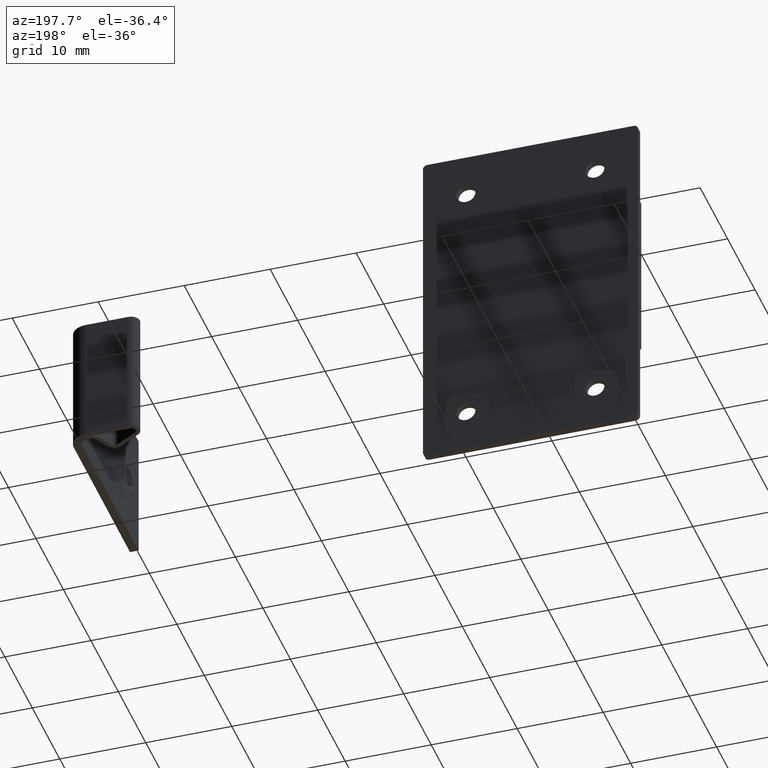
[diagram: clean part render]
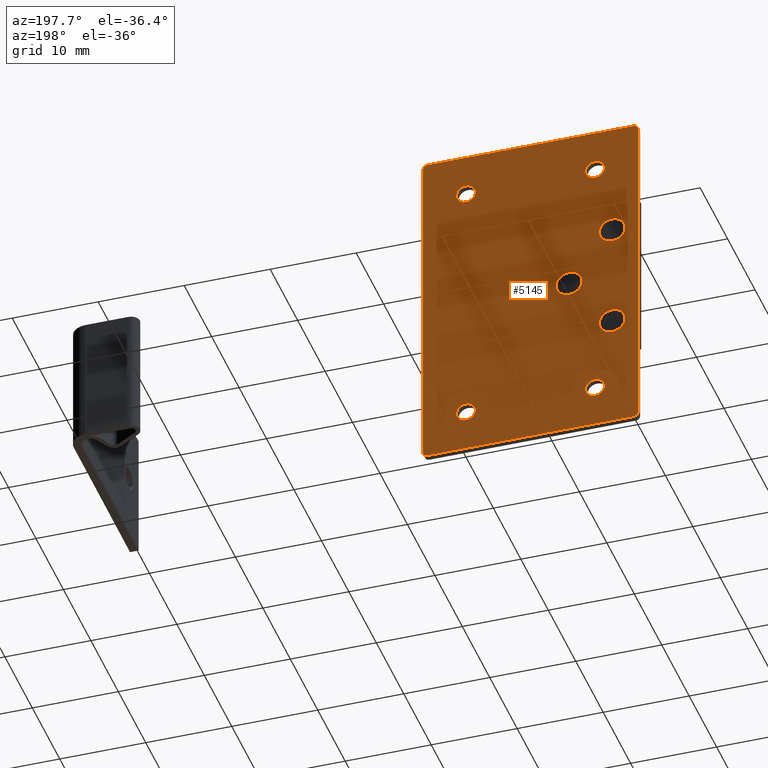
[diagram: same view with one face highlighted and labeled with its STEP entity id]
A machine part, auxiliary view. The second image highlights one B-rep face of the part: STEP entity #5145.
In plain terms, the highlighted face is a freeform B-spline surface patch.
Its self-contained STEP definition (entity closure, byte-faithful):
#3443=CARTESIAN_POINT('',(3.903390932939413,1.734723E-017,15.086290005883260));
#3444=VERTEX_POINT('',#3443);
#3450=CARTESIAN_POINT('',(5.0,0.0,16.099985000000000));
#3451=VERTEX_POINT('',#3450);
#3452=CARTESIAN_POINT('',(5.0,0.0,16.099985000000000));
#3453=CARTESIAN_POINT('',(3.983170460259789,0.0,16.099984999999997));
#3454=CARTESIAN_POINT('',(3.903390932939413,1.734723E-017,15.086290005883255));
#3462=(BOUNDED_CURVE()B_SPLINE_CURVE(2,(#3452,#3453,#3454),.UNSPECIFIED.,.F.,.U.)B_SPLINE_CURVE_WITH_KNOTS((3,3),(0.0,0.236331300450613),.UNSPECIFIED.)CURVE()GEOMETRIC_REPRESENTATION_ITEM()RATIONAL_B_SPLINE_CURVE((1.0,0.723120658818604,0.969723355791673))REPRESENTATION_ITEM(''));
#3463=EDGE_CURVE('',#3451,#3444,#3462,.T.);
#3465=CARTESIAN_POINT('',(6.096609067060587,1.734723E-017,14.913679994116750));
#3466=VERTEX_POINT('',#3465);
#3467=CARTESIAN_POINT('',(6.096609067060587,1.734723E-017,14.913679994116750));
#3468=CARTESIAN_POINT('',(6.100000000000001,0.0,14.956765881706232));
#3469=CARTESIAN_POINT('',(6.100000000000001,0.0,14.999985000000001));
#3470=CARTESIAN_POINT('',(6.100000000000001,0.0,16.099985000000004));
#3471=CARTESIAN_POINT('',(5.0,0.0,16.099985000000000));
#3479=(BOUNDED_CURVE()B_SPLINE_CURVE(2,(#3467,#3468,#3469,#3470,#3471),.UNSPECIFIED.,.F.,.U.)B_SPLINE_CURVE_WITH_KNOTS((3,2,3),(0.736331300450612,0.750000000000000,1.0),.UNSPECIFIED.)CURVE()GEOMETRIC_REPRESENTATION_ITEM()RATIONAL_B_SPLINE_CURVE((0.969723355791673,0.983986122367943,1.0,0.707106781186548,1.0))REPRESENTATION_ITEM(''));
#3480=EDGE_CURVE('',#3466,#3451,#3479,.T.);
#3556=CARTESIAN_POINT('',(5.0,0.0,13.899984999999999));
#3557=VERTEX_POINT('',#3556);
#3558=CARTESIAN_POINT('',(5.0,0.0,13.899984999999999));
#3559=CARTESIAN_POINT('',(6.016829539740207,0.0,13.899984999999996));
#3560=CARTESIAN_POINT('',(6.096609067060587,1.734723E-017,14.913679994116748));
#3568=(BOUNDED_CURVE()B_SPLINE_CURVE(2,(#3558,#3559,#3560),.UNSPECIFIED.,.F.,.U.)B_SPLINE_CURVE_WITH_KNOTS((3,3),(0.500000000000000,0.736331300450612),.UNSPECIFIED.)CURVE()GEOMETRIC_REPRESENTATION_ITEM()RATIONAL_B_SPLINE_CURVE((1.0,0.723120658818605,0.969723355791672))REPRESENTATION_ITEM(''));
#3569=EDGE_CURVE('',#3557,#3466,#3568,.T.);
#3571=CARTESIAN_POINT('',(3.903390932939413,1.734723E-017,15.086290005883249));
#3572=CARTESIAN_POINT('',(3.900000000000000,0.0,15.043204118293771));
#3573=CARTESIAN_POINT('',(3.900000000000000,0.0,14.999985000000001));
#3574=CARTESIAN_POINT('',(3.899999999999999,0.0,13.899985000000001));
#3575=CARTESIAN_POINT('',(5.0,0.0,13.899984999999999));
#3583=(BOUNDED_CURVE()B_SPLINE_CURVE(2,(#3571,#3572,#3573,#3574,#3575),.UNSPECIFIED.,.F.,.U.)B_SPLINE_CURVE_WITH_KNOTS((3,2,3),(0.236331300450613,0.250000000000000,0.500000000000000),.UNSPECIFIED.)CURVE()GEOMETRIC_REPRESENTATION_ITEM()RATIONAL_B_SPLINE_CURVE((0.969723355791673,0.983986122367944,1.0,0.707106781186548,1.0))REPRESENTATION_ITEM(''));
#3584=EDGE_CURVE('',#3444,#3557,#3583,.T.);
#3625=CARTESIAN_POINT('',(18.903390932939409,1.734723E-017,15.086290005883260));
#3626=VERTEX_POINT('',#3625);
#3632=CARTESIAN_POINT('',(20.0,0.0,16.099985000000000));
#3633=VERTEX_POINT('',#3632);
#3634=CARTESIAN_POINT('',(20.0,0.0,16.099985000000000));
#3635=CARTESIAN_POINT('',(18.983170460259785,0.0,16.099985000000011));
#3636=CARTESIAN_POINT('',(18.903390932939413,1.734723E-017,15.086290005883258));
#3644=(BOUNDED_CURVE()B_SPLINE_CURVE(2,(#3634,#3635,#3636),.UNSPECIFIED.,.F.,.U.)B_SPLINE_CURVE_WITH_KNOTS((3,3),(0.0,0.236331300450612),.UNSPECIFIED.)CURVE()GEOMETRIC_REPRESENTATION_ITEM()RATIONAL_B_SPLINE_CURVE((1.0,0.723120658818604,0.969723355791673))REPRESENTATION_ITEM(''));
#3645=EDGE_CURVE('',#3633,#3626,#3644,.T.);
#3647=CARTESIAN_POINT('',(21.096609067060591,1.734723E-017,14.913679994116750));
#3648=VERTEX_POINT('',#3647);
#3649=CARTESIAN_POINT('',(21.096609067060584,1.734723E-017,14.913679994116741));
#3650=CARTESIAN_POINT('',(21.100000000000005,0.0,14.956765881706234));
#3651=CARTESIAN_POINT('',(21.100000000000001,0.0,14.999985000000001));
#3652=CARTESIAN_POINT('',(21.100000000000009,0.0,16.099985000000004));
#3653=CARTESIAN_POINT('',(20.0,0.0,16.099985000000000));
#3661=(BOUNDED_CURVE()B_SPLINE_CURVE(2,(#3649,#3650,#3651,#3652,#3653),.UNSPECIFIED.,.F.,.U.)B_SPLINE_CURVE_WITH_KNOTS((3,2,3),(0.736331300450612,0.750000000000000,1.0),.UNSPECIFIED.)CURVE()GEOMETRIC_REPRESENTATION_ITEM()RATIONAL_B_SPLINE_CURVE((0.969723355791673,0.983986122367943,1.0,0.707106781186548,1.0))REPRESENTATION_ITEM(''));
#3662=EDGE_CURVE('',#3648,#3633,#3661,.T.);
#3738=CARTESIAN_POINT('',(20.0,0.0,13.899984999999999));
#3739=VERTEX_POINT('',#3738);
#3740=CARTESIAN_POINT('',(20.0,0.0,13.899984999999999));
#3741=CARTESIAN_POINT('',(21.016829539740218,0.0,13.899984999999996));
#3742=CARTESIAN_POINT('',(21.096609067060587,1.734723E-017,14.913679994116748));
#3750=(BOUNDED_CURVE()B_SPLINE_CURVE(2,(#3740,#3741,#3742),.UNSPECIFIED.,.F.,.U.)B_SPLINE_CURVE_WITH_KNOTS((3,3),(0.500000000000000,0.736331300450612),.UNSPECIFIED.)CURVE()GEOMETRIC_REPRESENTATION_ITEM()RATIONAL_B_SPLINE_CURVE((1.0,0.723120658818605,0.969723355791672))REPRESENTATION_ITEM(''));
#3751=EDGE_CURVE('',#3739,#3648,#3750,.T.);
#3753=CARTESIAN_POINT('',(18.903390932939413,1.734723E-017,15.086290005883258));
#3754=CARTESIAN_POINT('',(18.899999999999999,0.0,15.043204118293765));
#3755=CARTESIAN_POINT('',(18.899999999999999,0.0,14.999985000000001));
#3756=CARTESIAN_POINT('',(18.900000000000002,0.0,13.899985000000001));
#3757=CARTESIAN_POINT('',(20.0,0.0,13.899984999999999));
#3765=(BOUNDED_CURVE()B_SPLINE_CURVE(2,(#3753,#3754,#3755,#3756,#3757),.UNSPECIFIED.,.F.,.U.)B_SPLINE_CURVE_WITH_KNOTS((3,2,3),(0.236331300450612,0.250000000000000,0.500000000000000),.UNSPECIFIED.)CURVE()GEOMETRIC_REPRESENTATION_ITEM()RATIONAL_B_SPLINE_CURVE((0.969723355791673,0.983986122367943,1.0,0.707106781186548,1.0))REPRESENTATION_ITEM(''));
#3766=EDGE_CURVE('',#3626,#3739,#3765,.T.);
#3807=CARTESIAN_POINT('',(18.903390932939409,1.734723E-017,-14.913694994116740));
#3808=VERTEX_POINT('',#3807);
#3814=CARTESIAN_POINT('',(20.0,0.0,-13.900000000000000));
#3815=VERTEX_POINT('',#3814);
#3816=CARTESIAN_POINT('',(20.0,0.0,-13.900000000000000));
#3817=CARTESIAN_POINT('',(18.983170460259785,0.0,-13.900000000000004));
#3818=CARTESIAN_POINT('',(18.903390932939413,1.734723E-017,-14.913694994116740));
#3826=(BOUNDED_CURVE()B_SPLINE_CURVE(2,(#3816,#3817,#3818),.UNSPECIFIED.,.F.,.U.)B_SPLINE_CURVE_WITH_KNOTS((3,3),(0.0,0.236331300450612),.UNSPECIFIED.)CURVE()GEOMETRIC_REPRESENTATION_ITEM()RATIONAL_B_SPLINE_CURVE((1.0,0.723120658818604,0.969723355791673))REPRESENTATION_ITEM(''));
#3827=EDGE_CURVE('',#3815,#3808,#3826,.T.);
#3829=CARTESIAN_POINT('',(21.096609067060591,1.734723E-017,-15.086305005883251));
#3830=VERTEX_POINT('',#3829);
#3831=CARTESIAN_POINT('',(21.096609067060587,1.734723E-017,-15.086305005883258));
#3832=CARTESIAN_POINT('',(21.100000000000001,0.0,-15.043219118293768));
#3833=CARTESIAN_POINT('',(21.100000000000001,0.0,-15.0));
#3834=CARTESIAN_POINT('',(21.100000000000009,0.0,-13.899999999999999));
#3835=CARTESIAN_POINT('',(20.0,0.0,-13.900000000000000));
#3843=(BOUNDED_CURVE()B_SPLINE_CURVE(2,(#3831,#3832,#3833,#3834,#3835),.UNSPECIFIED.,.F.,.U.)B_SPLINE_CURVE_WITH_KNOTS((3,2,3),(0.736331300450612,0.750000000000000,1.0),.UNSPECIFIED.)CURVE()GEOMETRIC_REPRESENTATION_ITEM()RATIONAL_B_SPLINE_CURVE((0.969723355791673,0.983986122367944,1.0,0.707106781186548,1.0))REPRESENTATION_ITEM(''));
#3844=EDGE_CURVE('',#3830,#3815,#3843,.T.);
#3920=CARTESIAN_POINT('',(20.0,0.0,-16.100000000000001));
#3921=VERTEX_POINT('',#3920);
#3922=CARTESIAN_POINT('',(20.0,0.0,-16.100000000000001));
#3923=CARTESIAN_POINT('',(21.016829539740218,0.0,-16.100000000000005));
#3924=CARTESIAN_POINT('',(21.096609067060587,1.734723E-017,-15.086305005883251));
#3932=(BOUNDED_CURVE()B_SPLINE_CURVE(2,(#3922,#3923,#3924),.UNSPECIFIED.,.F.,.U.)B_SPLINE_CURVE_WITH_KNOTS((3,3),(0.500000000000000,0.736331300450612),.UNSPECIFIED.)CURVE()GEOMETRIC_REPRESENTATION_ITEM()RATIONAL_B_SPLINE_CURVE((1.0,0.723120658818605,0.969723355791672))REPRESENTATION_ITEM(''));
#3933=EDGE_CURVE('',#3921,#3830,#3932,.T.);
#3935=CARTESIAN_POINT('',(18.903390932939413,1.734723E-017,-14.913694994116740));
#3936=CARTESIAN_POINT('',(18.899999999999999,0.0,-14.956780881706237));
#3937=CARTESIAN_POINT('',(18.899999999999999,0.0,-15.0));
#3938=CARTESIAN_POINT('',(18.900000000000002,0.0,-16.100000000000005));
#3939=CARTESIAN_POINT('',(20.0,0.0,-16.100000000000001));
#3947=(BOUNDED_CURVE()B_SPLINE_CURVE(2,(#3935,#3936,#3937,#3938,#3939),.UNSPECIFIED.,.F.,.U.)B_SPLINE_CURVE_WITH_KNOTS((3,2,3),(0.236331300450612,0.250000000000000,0.500000000000000),.UNSPECIFIED.)CURVE()GEOMETRIC_REPRESENTATION_ITEM()RATIONAL_B_SPLINE_CURVE((0.969723355791673,0.983986122367943,1.0,0.707106781186548,1.0))REPRESENTATION_ITEM(''));
#3948=EDGE_CURVE('',#3808,#3921,#3947,.T.);
#3989=CARTESIAN_POINT('',(3.903390932939413,1.734723E-017,-14.913694994116749));
#3990=VERTEX_POINT('',#3989);
#3996=CARTESIAN_POINT('',(5.0,0.0,-13.900000000000000));
#3997=VERTEX_POINT('',#3996);
#3998=CARTESIAN_POINT('',(5.0,0.0,-13.900000000000000));
#3999=CARTESIAN_POINT('',(3.983170460259789,0.0,-13.900000000000004));
#4000=CARTESIAN_POINT('',(3.903390932939413,1.734723E-017,-14.913694994116742));
#4008=(BOUNDED_CURVE()B_SPLINE_CURVE(2,(#3998,#3999,#4000),.UNSPECIFIED.,.F.,.U.)B_SPLINE_CURVE_WITH_KNOTS((3,3),(0.0,0.236331300450612),.UNSPECIFIED.)CURVE()GEOMETRIC_REPRESENTATION_ITEM()RATIONAL_B_SPLINE_CURVE((1.0,0.723120658818604,0.969723355791673))REPRESENTATION_ITEM(''));
#4009=EDGE_CURVE('',#3997,#3990,#4008,.T.);
#4011=CARTESIAN_POINT('',(6.096609067060587,1.734723E-017,-15.086305005883260));
#4012=VERTEX_POINT('',#4011);
#4013=CARTESIAN_POINT('',(6.096609067060588,1.734723E-017,-15.086305005883260));
#4014=CARTESIAN_POINT('',(6.100000000000001,0.0,-15.043219118293765));
#4015=CARTESIAN_POINT('',(6.100000000000001,0.0,-15.0));
#4016=CARTESIAN_POINT('',(6.100000000000001,0.0,-13.899999999999999));
#4017=CARTESIAN_POINT('',(5.0,0.0,-13.900000000000000));
#4025=(BOUNDED_CURVE()B_SPLINE_CURVE(2,(#4013,#4014,#4015,#4016,#4017),.UNSPECIFIED.,.F.,.U.)B_SPLINE_CURVE_WITH_KNOTS((3,2,3),(0.736331300450612,0.750000000000000,1.0),.UNSPECIFIED.)CURVE()GEOMETRIC_REPRESENTATION_ITEM()RATIONAL_B_SPLINE_CURVE((0.969723355791672,0.983986122367943,1.0,0.707106781186548,1.0))REPRESENTATION_ITEM(''));
#4026=EDGE_CURVE('',#4012,#3997,#4025,.T.);
#4102=CARTESIAN_POINT('',(5.0,0.0,-16.100000000000001));
#4103=VERTEX_POINT('',#4102);
#4104=CARTESIAN_POINT('',(5.0,0.0,-16.100000000000001));
#4105=CARTESIAN_POINT('',(6.016829539740207,0.0,-16.100000000000005));
#4106=CARTESIAN_POINT('',(6.096609067060587,1.734723E-017,-15.086305005883261));
#4114=(BOUNDED_CURVE()B_SPLINE_CURVE(2,(#4104,#4105,#4106),.UNSPECIFIED.,.F.,.U.)B_SPLINE_CURVE_WITH_KNOTS((3,3),(0.500000000000000,0.736331300450612),.UNSPECIFIED.)CURVE()GEOMETRIC_REPRESENTATION_ITEM()RATIONAL_B_SPLINE_CURVE((1.0,0.723120658818605,0.969723355791672))REPRESENTATION_ITEM(''));
#4115=EDGE_CURVE('',#4103,#4012,#4114,.T.);
#4117=CARTESIAN_POINT('',(3.903390932939414,1.734723E-017,-14.913694994116744));
#4118=CARTESIAN_POINT('',(3.900000000000000,0.0,-14.956780881706239));
#4119=CARTESIAN_POINT('',(3.900000000000000,0.0,-15.0));
#4120=CARTESIAN_POINT('',(3.899999999999999,0.0,-16.100000000000005));
#4121=CARTESIAN_POINT('',(5.0,0.0,-16.100000000000001));
#4129=(BOUNDED_CURVE()B_SPLINE_CURVE(2,(#4117,#4118,#4119,#4120,#4121),.UNSPECIFIED.,.F.,.U.)B_SPLINE_CURVE_WITH_KNOTS((3,2,3),(0.236331300450612,0.250000000000000,0.500000000000000),.UNSPECIFIED.)CURVE()GEOMETRIC_REPRESENTATION_ITEM()RATIONAL_B_SPLINE_CURVE((0.969723355791673,0.983986122367943,1.0,0.707106781186548,1.0))REPRESENTATION_ITEM(''));
#4130=EDGE_CURVE('',#3990,#4103,#4129,.T.);
#4192=CARTESIAN_POINT('',(4.497202197609385,2.775558E-017,6.158412190314772));
#4193=VERTEX_POINT('',#4192);
#4199=CARTESIAN_POINT('',(3.0,0.0,4.749984999999899));
#4200=VERTEX_POINT('',#4199);
#4201=CARTESIAN_POINT('',(3.0,0.0,4.749984999999899));
#4202=CARTESIAN_POINT('',(4.411059099635568,0.0,4.749984999999900));
#4203=CARTESIAN_POINT('',(4.497202197609385,2.775558E-017,6.158412190314772));
#4211=(BOUNDED_CURVE()B_SPLINE_CURVE(2,(#4201,#4202,#4203),.UNSPECIFIED.,.F.,.U.)B_SPLINE_CURVE_WITH_KNOTS((3,3),(0.500000000000000,0.739332962153727),.UNSPECIFIED.)CURVE()GEOMETRIC_REPRESENTATION_ITEM()RATIONAL_B_SPLINE_CURVE((1.0,0.719603993386547,0.976072041484083))REPRESENTATION_ITEM(''));
#4212=EDGE_CURVE('',#4200,#4193,#4211,.T.);
#4214=CARTESIAN_POINT('',(1.510485710497989,2.839428E-017,6.427036352350905));
#4215=VERTEX_POINT('',#4214);
#4216=CARTESIAN_POINT('',(1.510485710497990,2.839428E-017,6.427036352350905));
#4217=CARTESIAN_POINT('',(1.500000000000000,0.0,6.338821179847501));
#4218=CARTESIAN_POINT('',(1.500000000000000,0.0,6.249984999999900));
#4219=CARTESIAN_POINT('',(1.500000000000000,0.0,4.749984999999899));
#4220=CARTESIAN_POINT('',(3.0,0.0,4.749984999999899));
#4228=(BOUNDED_CURVE()B_SPLINE_CURVE(2,(#4216,#4217,#4218,#4219,#4220),.UNSPECIFIED.,.F.,.U.)B_SPLINE_CURVE_WITH_KNOTS((3,2,3),(0.229562473432620,0.250000000000000,0.500000000000000),.UNSPECIFIED.)CURVE()GEOMETRIC_REPRESENTATION_ITEM()RATIONAL_B_SPLINE_CURVE((0.956026754025155,0.976055948236379,1.0,0.707106781186548,1.0))REPRESENTATION_ITEM(''));
#4229=EDGE_CURVE('',#4215,#4200,#4228,.T.);
#4273=CARTESIAN_POINT('',(3.0,0.0,7.749984999999900));
#4274=VERTEX_POINT('',#4273);
#4275=CARTESIAN_POINT('',(3.0,0.0,7.749984999999900));
#4276=CARTESIAN_POINT('',(1.667738211732040,0.0,7.749984999999900));
#4277=CARTESIAN_POINT('',(1.510485710497989,2.839428E-017,6.427036352350905));
#4285=(BOUNDED_CURVE()B_SPLINE_CURVE(2,(#4275,#4276,#4277),.UNSPECIFIED.,.F.,.U.)B_SPLINE_CURVE_WITH_KNOTS((3,3),(0.0,0.229562473432620),.UNSPECIFIED.)CURVE()GEOMETRIC_REPRESENTATION_ITEM()RATIONAL_B_SPLINE_CURVE((1.0,0.731050832950169,0.956026754025155))REPRESENTATION_ITEM(''));
#4286=EDGE_CURVE('',#4274,#4215,#4285,.T.);
#4288=CARTESIAN_POINT('',(4.497202197609386,2.775558E-017,6.158412190314772));
#4289=CARTESIAN_POINT('',(4.500000000000000,0.0,6.204155854668100));
#4290=CARTESIAN_POINT('',(4.500000000000001,0.0,6.249984999999900));
#4291=CARTESIAN_POINT('',(4.500000000000002,0.0,7.749984999999900));
#4292=CARTESIAN_POINT('',(3.0,0.0,7.749984999999900));
#4300=(BOUNDED_CURVE()B_SPLINE_CURVE(2,(#4288,#4289,#4290,#4291,#4292),.UNSPECIFIED.,.F.,.U.)B_SPLINE_CURVE_WITH_KNOTS((3,2,3),(0.739332962153726,0.750000000000000,1.0),.UNSPECIFIED.)CURVE()GEOMETRIC_REPRESENTATION_ITEM()RATIONAL_B_SPLINE_CURVE((0.976072041484082,0.987502787799999,1.0,0.707106781186548,1.0))REPRESENTATION_ITEM(''));
#4301=EDGE_CURVE('',#4193,#4274,#4300,.T.);
#4378=CARTESIAN_POINT('',(9.497202197609385,2.775558E-017,-0.091572809685129));
#4379=VERTEX_POINT('',#4378);
#4385=CARTESIAN_POINT('',(8.0,0.0,-1.500000000000000));
#4386=VERTEX_POINT('',#4385);
#4387=CARTESIAN_POINT('',(8.0,0.0,-1.500000000000000));
#4388=CARTESIAN_POINT('',(9.411059099635567,0.0,-1.500000000000000));
#4389=CARTESIAN_POINT('',(9.497202197609385,2.775558E-017,-0.091572809685129));
#4397=(BOUNDED_CURVE()B_SPLINE_CURVE(2,(#4387,#4388,#4389),.UNSPECIFIED.,.F.,.U.)B_SPLINE_CURVE_WITH_KNOTS((3,3),(0.500000000000000,0.739332962153727),.UNSPECIFIED.)CURVE()GEOMETRIC_REPRESENTATION_ITEM()RATIONAL_B_SPLINE_CURVE((1.0,0.719603993386547,0.976072041484083))REPRESENTATION_ITEM(''));
#4398=EDGE_CURVE('',#4386,#4379,#4397,.T.);
#4400=CARTESIAN_POINT('',(6.510485710497990,2.839428E-017,0.177051352351005));
#4401=VERTEX_POINT('',#4400);
#4402=CARTESIAN_POINT('',(6.510485710497990,2.839428E-017,0.177051352351005));
#4403=CARTESIAN_POINT('',(6.500000000000001,0.0,0.088836179847601));
#4404=CARTESIAN_POINT('',(6.500000000000001,0.0,0.0));
#4405=CARTESIAN_POINT('',(6.500000000000003,0.0,-1.500000000000000));
#4406=CARTESIAN_POINT('',(8.0,0.0,-1.500000000000000));
#4414=(BOUNDED_CURVE()B_SPLINE_CURVE(2,(#4402,#4403,#4404,#4405,#4406),.UNSPECIFIED.,.F.,.U.)B_SPLINE_CURVE_WITH_KNOTS((3,2,3),(0.229562473432620,0.250000000000000,0.500000000000000),.UNSPECIFIED.)CURVE()GEOMETRIC_REPRESENTATION_ITEM()RATIONAL_B_SPLINE_CURVE((0.956026754025155,0.976055948236379,1.0,0.707106781186548,1.0))REPRESENTATION_ITEM(''));
#4415=EDGE_CURVE('',#4401,#4386,#4414,.T.);
#4459=CARTESIAN_POINT('',(8.0,0.0,1.500000000000000));
#4460=VERTEX_POINT('',#4459);
#4461=CARTESIAN_POINT('',(8.0,0.0,1.500000000000000));
#4462=CARTESIAN_POINT('',(6.667738211732042,0.0,1.500000000000001));
#4463=CARTESIAN_POINT('',(6.510485710497990,2.839428E-017,0.177051352351005));
#4471=(BOUNDED_CURVE()B_SPLINE_CURVE(2,(#4461,#4462,#4463),.UNSPECIFIED.,.F.,.U.)B_SPLINE_CURVE_WITH_KNOTS((3,3),(0.0,0.229562473432620),.UNSPECIFIED.)CURVE()GEOMETRIC_REPRESENTATION_ITEM()RATIONAL_B_SPLINE_CURVE((1.0,0.731050832950169,0.956026754025155))REPRESENTATION_ITEM(''));
#4472=EDGE_CURVE('',#4460,#4401,#4471,.T.);
#4474=CARTESIAN_POINT('',(9.497202197609385,2.775558E-017,-0.091572809685129));
#4475=CARTESIAN_POINT('',(9.500000000000000,0.0,-0.045829145331800));
#4476=CARTESIAN_POINT('',(9.500000000000000,0.0,0.0));
#4477=CARTESIAN_POINT('',(9.500000000000000,0.0,1.500000000000000));
#4478=CARTESIAN_POINT('',(8.0,0.0,1.500000000000000));
#4486=(BOUNDED_CURVE()B_SPLINE_CURVE(2,(#4474,#4475,#4476,#4477,#4478),.UNSPECIFIED.,.F.,.U.)B_SPLINE_CURVE_WITH_KNOTS((3,2,3),(0.739332962153726,0.750000000000000,1.0),.UNSPECIFIED.)CURVE()GEOMETRIC_REPRESENTATION_ITEM()RATIONAL_B_SPLINE_CURVE((0.976072041484082,0.987502787799999,1.0,0.707106781186548,1.0))REPRESENTATION_ITEM(''));
#4487=EDGE_CURVE('',#4379,#4460,#4486,.T.);
#4564=CARTESIAN_POINT('',(4.497202197609385,2.775558E-017,-6.341572809685129));
#4565=VERTEX_POINT('',#4564);
#4571=CARTESIAN_POINT('',(3.0,0.0,-7.750000000000000));
#4572=VERTEX_POINT('',#4571);
#4573=CARTESIAN_POINT('',(3.0,0.0,-7.750000000000000));
#4574=CARTESIAN_POINT('',(4.411059099635568,0.0,-7.750000000000001));
#4575=CARTESIAN_POINT('',(4.497202197609385,2.775558E-017,-6.341572809685129));
#4583=(BOUNDED_CURVE()B_SPLINE_CURVE(2,(#4573,#4574,#4575),.UNSPECIFIED.,.F.,.U.)B_SPLINE_CURVE_WITH_KNOTS((3,3),(0.500000000000000,0.739332962153727),.UNSPECIFIED.)CURVE()GEOMETRIC_REPRESENTATION_ITEM()RATIONAL_B_SPLINE_CURVE((1.0,0.719603993386547,0.976072041484083))REPRESENTATION_ITEM(''));
#4584=EDGE_CURVE('',#4572,#4565,#4583,.T.);
#4586=CARTESIAN_POINT('',(1.510485710497989,2.839428E-017,-6.072948647648994));
#4587=VERTEX_POINT('',#4586);
#4588=CARTESIAN_POINT('',(1.510485710497989,2.839428E-017,-6.072948647648994));
#4589=CARTESIAN_POINT('',(1.500000000000000,0.0,-6.161163820152400));
#4590=CARTESIAN_POINT('',(1.500000000000000,0.0,-6.250000000000000));
#4591=CARTESIAN_POINT('',(1.500000000000000,0.0,-7.750000000000001));
#4592=CARTESIAN_POINT('',(3.0,0.0,-7.750000000000000));
#4600=(BOUNDED_CURVE()B_SPLINE_CURVE(2,(#4588,#4589,#4590,#4591,#4592),.UNSPECIFIED.,.F.,.U.)B_SPLINE_CURVE_WITH_KNOTS((3,2,3),(0.229562473432620,0.250000000000000,0.500000000000000),.UNSPECIFIED.)CURVE()GEOMETRIC_REPRESENTATION_ITEM()RATIONAL_B_SPLINE_CURVE((0.956026754025155,0.976055948236379,1.0,0.707106781186548,1.0))REPRESENTATION_ITEM(''));
#4601=EDGE_CURVE('',#4587,#4572,#4600,.T.);
#4645=CARTESIAN_POINT('',(3.0,0.0,-4.750000000000001));
#4646=VERTEX_POINT('',#4645);
#4647=CARTESIAN_POINT('',(3.0,0.0,-4.750000000000001));
#4648=CARTESIAN_POINT('',(1.667738211732040,0.0,-4.750000000000001));
#4649=CARTESIAN_POINT('',(1.510485710497989,2.839428E-017,-6.072948647648994));
#4657=(BOUNDED_CURVE()B_SPLINE_CURVE(2,(#4647,#4648,#4649),.UNSPECIFIED.,.F.,.U.)B_SPLINE_CURVE_WITH_KNOTS((3,3),(0.0,0.229562473432620),.UNSPECIFIED.)CURVE()GEOMETRIC_REPRESENTATION_ITEM()RATIONAL_B_SPLINE_CURVE((1.0,0.731050832950169,0.956026754025155))REPRESENTATION_ITEM(''));
#4658=EDGE_CURVE('',#4646,#4587,#4657,.T.);
#4660=CARTESIAN_POINT('',(4.497202197609386,2.775558E-017,-6.341572809685129));
#4661=CARTESIAN_POINT('',(4.500000000000000,0.0,-6.295829145331801));
#4662=CARTESIAN_POINT('',(4.500000000000001,0.0,-6.250000000000000));
#4663=CARTESIAN_POINT('',(4.500000000000002,0.0,-4.750000000000002));
#4664=CARTESIAN_POINT('',(3.0,0.0,-4.750000000000001));
#4672=(BOUNDED_CURVE()B_SPLINE_CURVE(2,(#4660,#4661,#4662,#4663,#4664),.UNSPECIFIED.,.F.,.U.)B_SPLINE_CURVE_WITH_KNOTS((3,2,3),(0.739332962153726,0.750000000000000,1.0),.UNSPECIFIED.)CURVE()GEOMETRIC_REPRESENTATION_ITEM()RATIONAL_B_SPLINE_CURVE((0.976072041484082,0.987502787799999,1.0,0.707106781186548,1.0))REPRESENTATION_ITEM(''));
#4673=EDGE_CURVE('',#4565,#4646,#4672,.T.);
#4725=CARTESIAN_POINT('',(0.499999973820047,0.0,19.999984999999899));
#4726=VERTEX_POINT('',#4725);
#4732=CARTESIAN_POINT('',(0.0,0.0,19.499984999999899));
#4733=VERTEX_POINT('',#4732);
#4734=CARTESIAN_POINT('',(0.499999973820047,0.0,19.999984999999899));
#4735=CARTESIAN_POINT('',(-1.398621E-014,0.0,19.999984973819959));
#4736=CARTESIAN_POINT('',(-1.398621E-014,0.0,19.499984999999899));
#4744=(BOUNDED_CURVE()B_SPLINE_CURVE(2,(#4734,#4735,#4736),.UNSPECIFIED.,.F.,.U.)CURVE()GEOMETRIC_REPRESENTATION_ITEM()QUASI_UNIFORM_CURVE()RATIONAL_B_SPLINE_CURVE((1.0,0.707106799698560,1.0))REPRESENTATION_ITEM(''));
#4745=EDGE_CURVE('',#4726,#4733,#4744,.T.);
#4768=CARTESIAN_POINT('',(-8.049117E-015,0.0,-19.499999921460201));
#4769=VERTEX_POINT('',#4768);
#4770=CARTESIAN_POINT('',(-8.049117E-015,0.0,-19.499999921460201));
#4771=CARTESIAN_POINT('',(0.0,0.0,19.499984999999899));
#4772=QUASI_UNIFORM_CURVE('',1,(#4770,#4771),.UNSPECIFIED.,.F.,.U.);
#4773=EDGE_CURVE('',#4769,#4733,#4772,.T.);
#4815=CARTESIAN_POINT('',(0.499999999999986,0.0,-20.0));
#4816=VERTEX_POINT('',#4815);
#4817=CARTESIAN_POINT('',(-7.806256E-015,0.0,-19.499999921460201));
#4818=CARTESIAN_POINT('',(-0.000000032532262,0.0,-19.707106725650515));
#4819=CARTESIAN_POINT('',(0.146446581638701,0.0,-19.853553362825259));
#4820=CARTESIAN_POINT('',(0.292893195809663,0.0,-20.000000000000004));
#4821=CARTESIAN_POINT('',(0.499999999999986,0.0,-20.0));
#4829=(BOUNDED_CURVE()B_SPLINE_CURVE(2,(#4817,#4818,#4819,#4820,#4821),.UNSPECIFIED.,.F.,.U.)B_SPLINE_CURVE_WITH_KNOTS((3,2,3),(0.0,0.500000000000000,1.0),.UNSPECIFIED.)CURVE()GEOMETRIC_REPRESENTATION_ITEM()RATIONAL_B_SPLINE_CURVE((1.0,0.923879517483346,1.0,0.923879517483346,1.0))REPRESENTATION_ITEM(''));
#4830=EDGE_CURVE('',#4769,#4816,#4829,.T.);
#4853=CARTESIAN_POINT('',(24.499999973819950,0.0,-20.0));
#4854=VERTEX_POINT('',#4853);
#4855=CARTESIAN_POINT('',(24.499999973819950,0.0,-20.0));
#4856=CARTESIAN_POINT('',(0.499999999999986,0.0,-20.0));
#4857=QUASI_UNIFORM_CURVE('',1,(#4855,#4856),.UNSPECIFIED.,.F.,.U.);
#4858=EDGE_CURVE('',#4854,#4816,#4857,.T.);
#4900=CARTESIAN_POINT('',(25.0,0.0,-19.500000000000000));
#4901=VERTEX_POINT('',#4900);
#4902=CARTESIAN_POINT('',(24.499999973819950,0.0,-20.0));
#4903=CARTESIAN_POINT('',(24.707106762674460,0.0,-20.000000010844136));
#4904=CARTESIAN_POINT('',(24.853553381337228,0.0,-19.853553399849321));
#4905=CARTESIAN_POINT('',(24.999999999999996,0.0,-19.707106788854503));
#4906=CARTESIAN_POINT('',(25.0,0.0,-19.500000000000000));
#4914=(BOUNDED_CURVE()B_SPLINE_CURVE(2,(#4902,#4903,#4904,#4905,#4906),.UNSPECIFIED.,.F.,.U.)B_SPLINE_CURVE_WITH_KNOTS((3,2,3),(0.0,0.500000000000000,1.0),.UNSPECIFIED.)CURVE()GEOMETRIC_REPRESENTATION_ITEM()RATIONAL_B_SPLINE_CURVE((1.0,0.923879527501951,1.0,0.923879527501951,1.0))REPRESENTATION_ITEM(''));
#4915=EDGE_CURVE('',#4854,#4901,#4914,.T.);
#4938=CARTESIAN_POINT('',(25.0,0.0,19.499984999999899));
#4939=VERTEX_POINT('',#4938);
#4940=CARTESIAN_POINT('',(25.0,0.0,19.499984999999899));
#4941=CARTESIAN_POINT('',(25.0,0.0,-19.500000000000000));
#4942=QUASI_UNIFORM_CURVE('',1,(#4940,#4941),.UNSPECIFIED.,.F.,.U.);
#4943=EDGE_CURVE('',#4939,#4901,#4942,.T.);
#4985=CARTESIAN_POINT('',(24.499999973819950,0.0,19.999984999999899));
#4986=VERTEX_POINT('',#4985);
#4987=CARTESIAN_POINT('',(25.0,0.0,19.499984999999899));
#4988=CARTESIAN_POINT('',(25.0,0.0,19.707091788854417));
#4989=CARTESIAN_POINT('',(24.853553381337228,0.0,19.853538399849221));
#4990=CARTESIAN_POINT('',(24.707106762674456,0.0,19.999985010844032));
#4991=CARTESIAN_POINT('',(24.499999973819950,0.0,19.999984999999899));
#4999=(BOUNDED_CURVE()B_SPLINE_CURVE(2,(#4987,#4988,#4989,#4990,#4991),.UNSPECIFIED.,.F.,.U.)B_SPLINE_CURVE_WITH_KNOTS((3,2,3),(0.0,0.500000000000000,1.0),.UNSPECIFIED.)CURVE()GEOMETRIC_REPRESENTATION_ITEM()RATIONAL_B_SPLINE_CURVE((1.0,0.923879527501951,1.0,0.923879527501951,1.0))REPRESENTATION_ITEM(''));
#5000=EDGE_CURVE('',#4939,#4986,#4999,.T.);
#5021=CARTESIAN_POINT('',(0.499999973820047,0.0,19.999984999999899));
#5022=CARTESIAN_POINT('',(24.499999973819950,0.0,19.999984999999899));
#5023=QUASI_UNIFORM_CURVE('',1,(#5021,#5022),.UNSPECIFIED.,.F.,.U.);
#5024=EDGE_CURVE('',#4726,#4986,#5023,.T.);
#5088=CARTESIAN_POINT('',(-1.248749951545158,0.0,21.997984173222161));
#5089=CARTESIAN_POINT('',(26.248750622097401,0.0,21.997984173222161));
#5090=CARTESIAN_POINT('',(-1.248749951545158,0.0,-21.998000246105470));
#5091=CARTESIAN_POINT('',(26.248750622097401,0.0,-21.998000246105470));
#5092=B_SPLINE_SURFACE_WITH_KNOTS('',1,1,((#5088,#5090),(#5089,#5091)),.UNSPECIFIED.,.F.,.F.,.U.,(2,2),(2,2),(0.0,27.497500573642562),(0.0,43.995984419327627),.UNSPECIFIED.);
#5093=ORIENTED_EDGE('',*,*,#5024,.T.);
#5094=ORIENTED_EDGE('',*,*,#5000,.F.);
#5095=ORIENTED_EDGE('',*,*,#4943,.T.);
#5096=ORIENTED_EDGE('',*,*,#4915,.F.);
#5097=ORIENTED_EDGE('',*,*,#4858,.T.);
#5098=ORIENTED_EDGE('',*,*,#4830,.F.);
#5099=ORIENTED_EDGE('',*,*,#4773,.T.);
#5100=ORIENTED_EDGE('',*,*,#4745,.F.);
#5101=EDGE_LOOP('',(#5093,#5094,#5095,#5096,#5097,#5098,#5099,#5100));
#5102=FACE_OUTER_BOUND('',#5101,.T.);
#5103=ORIENTED_EDGE('',*,*,#4584,.T.);
#5104=ORIENTED_EDGE('',*,*,#4673,.T.);
#5105=ORIENTED_EDGE('',*,*,#4658,.T.);
#5106=ORIENTED_EDGE('',*,*,#4601,.T.);
#5107=EDGE_LOOP('',(#5103,#5104,#5105,#5106));
#5108=FACE_BOUND('',#5107,.T.);
#5109=ORIENTED_EDGE('',*,*,#4398,.T.);
#5110=ORIENTED_EDGE('',*,*,#4487,.T.);
#5111=ORIENTED_EDGE('',*,*,#4472,.T.);
#5112=ORIENTED_EDGE('',*,*,#4415,.T.);
#5113=EDGE_LOOP('',(#5109,#5110,#5111,#5112));
#5114=FACE_BOUND('',#5113,.T.);
#5115=ORIENTED_EDGE('',*,*,#4212,.T.);
#5116=ORIENTED_EDGE('',*,*,#4301,.T.);
#5117=ORIENTED_EDGE('',*,*,#4286,.T.);
#5118=ORIENTED_EDGE('',*,*,#4229,.T.);
#5119=EDGE_LOOP('',(#5115,#5116,#5117,#5118));
#5120=FACE_BOUND('',#5119,.T.);
#5121=ORIENTED_EDGE('',*,*,#4115,.T.);
#5122=ORIENTED_EDGE('',*,*,#4026,.T.);
#5123=ORIENTED_EDGE('',*,*,#4009,.T.);
#5124=ORIENTED_EDGE('',*,*,#4130,.T.);
#5125=EDGE_LOOP('',(#5121,#5122,#5123,#5124));
#5126=FACE_BOUND('',#5125,.T.);
#5127=ORIENTED_EDGE('',*,*,#3933,.T.);
#5128=ORIENTED_EDGE('',*,*,#3844,.T.);
#5129=ORIENTED_EDGE('',*,*,#3827,.T.);
#5130=ORIENTED_EDGE('',*,*,#3948,.T.);
#5131=EDGE_LOOP('',(#5127,#5128,#5129,#5130));
#5132=FACE_BOUND('',#5131,.T.);
#5133=ORIENTED_EDGE('',*,*,#3751,.T.);
#5134=ORIENTED_EDGE('',*,*,#3662,.T.);
#5135=ORIENTED_EDGE('',*,*,#3645,.T.);
#5136=ORIENTED_EDGE('',*,*,#3766,.T.);
#5137=EDGE_LOOP('',(#5133,#5134,#5135,#5136));
#5138=FACE_BOUND('',#5137,.T.);
#5139=ORIENTED_EDGE('',*,*,#3569,.T.);
#5140=ORIENTED_EDGE('',*,*,#3480,.T.);
#5141=ORIENTED_EDGE('',*,*,#3463,.T.);
#5142=ORIENTED_EDGE('',*,*,#3584,.T.);
#5143=EDGE_LOOP('',(#5139,#5140,#5141,#5142));
#5144=FACE_BOUND('',#5143,.T.);
#5145=ADVANCED_FACE('',(#5102,#5108,#5114,#5120,#5126,#5132,#5138,#5144),#5092,.T.);